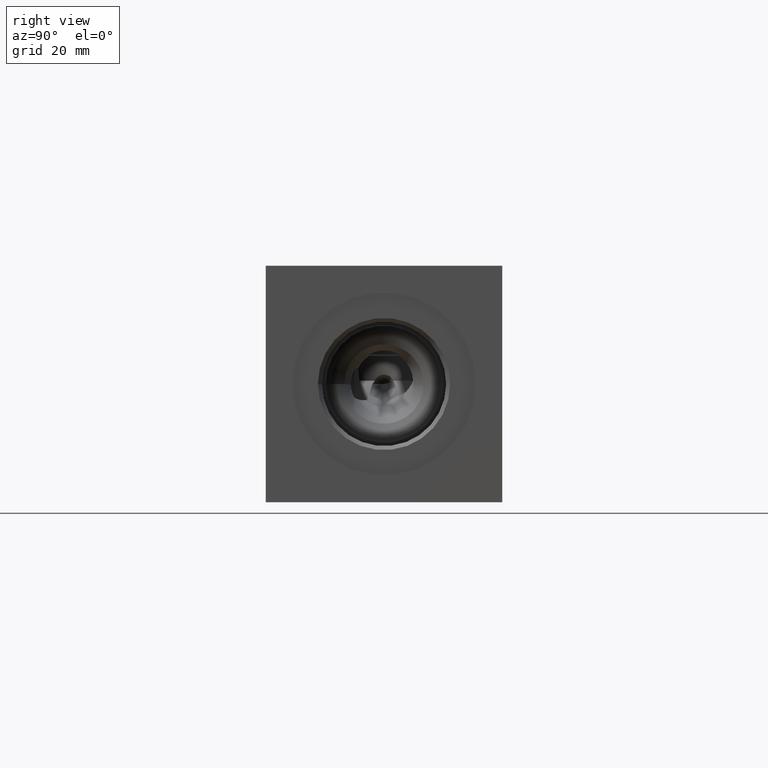
[diagram: clean part render]
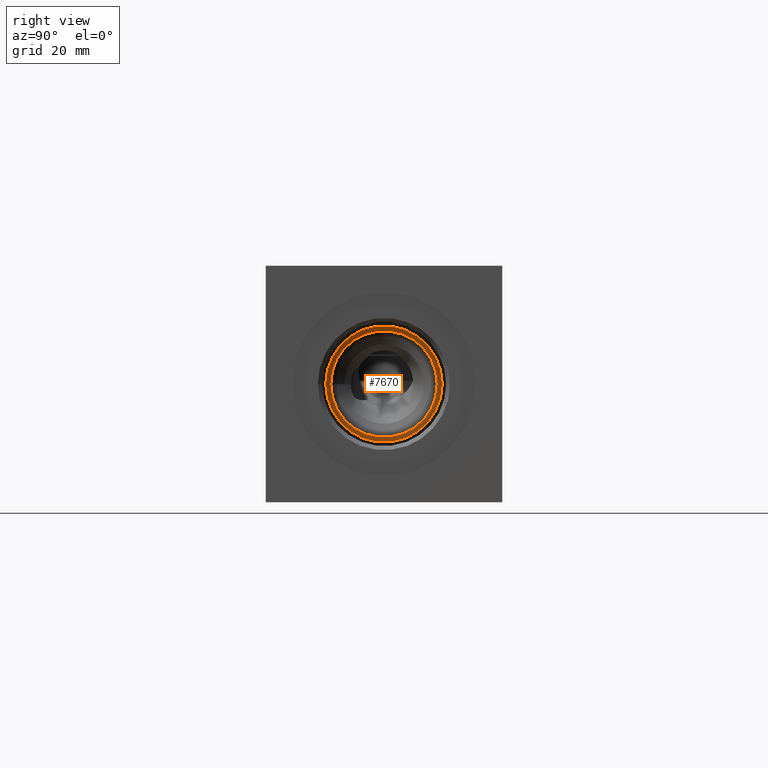
[diagram: same view with one face highlighted and labeled with its STEP entity id]
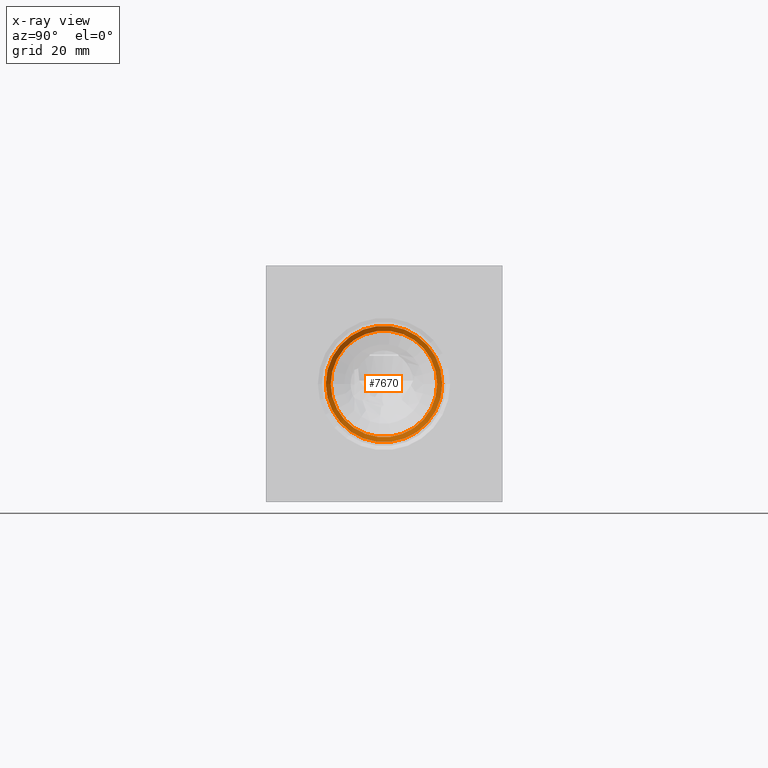
[diagram: x-ray of the same camera — body ghosted, the highlighted face saturated]
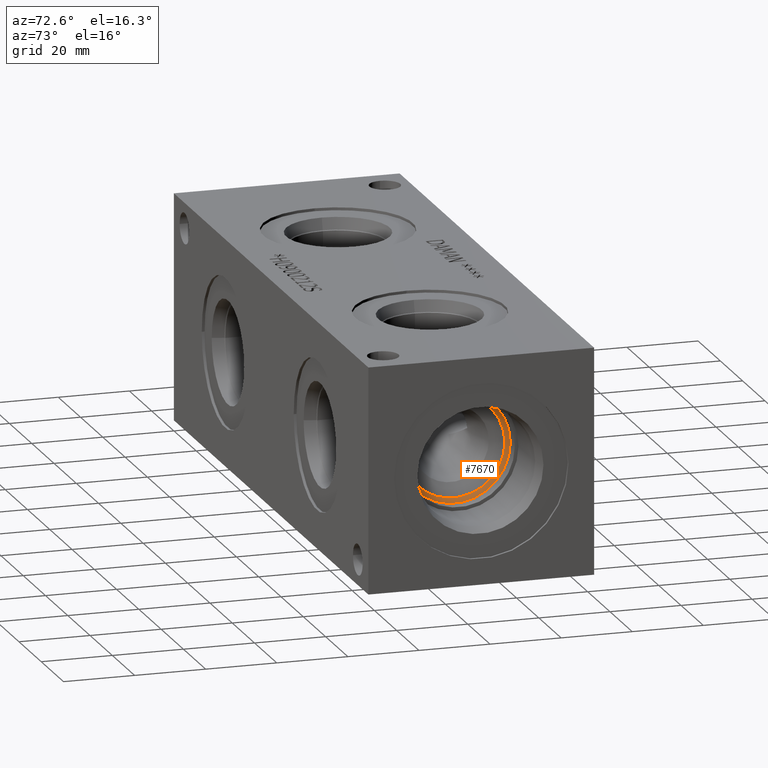
[diagram: same view with one face highlighted and labeled with its STEP entity id]
A machine part, right view. The second image highlights one B-rep face of the part: STEP entity #7670.
The next image is the same camera in x-ray: the body ghosted, the highlighted face saturated — about 0% of this face is hidden behind the body in this view.
A second angle (auxiliary view) of the same face is appended — the face is thin or edge-on in the first view.
In plain terms, the highlighted conical surface has half-angle 66 deg.
Its self-contained STEP definition (entity closure, byte-faithful):
#66=CONICAL_SURFACE('',#7987,7.81685,1.15191730631626);
#104=CIRCLE('',#7986,14.2875);
#105=CIRCLE('',#7988,15.6337);
#106=CIRCLE('',#7989,15.6337);
#909=FACE_OUTER_BOUND('',#1332,.T.);
#1332=EDGE_LOOP('',(#6384,#6385,#6386,#6387,#6388));
#2084=LINE('',#12852,#2799);
#2799=VECTOR('',#9291,7.81685);
#3444=VERTEX_POINT('',#12845);
#3445=VERTEX_POINT('',#12849);
#3446=VERTEX_POINT('',#12850);
#4450=EDGE_CURVE('',#3444,#3444,#104,.T.);
#4452=EDGE_CURVE('',#3445,#3446,#105,.T.);
#4453=EDGE_CURVE('',#3446,#3444,#2084,.T.);
#4454=EDGE_CURVE('',#3446,#3445,#106,.T.);
#6384=ORIENTED_EDGE('',*,*,#4452,.T.);
#6385=ORIENTED_EDGE('',*,*,#4453,.T.);
#6386=ORIENTED_EDGE('',*,*,#4450,.T.);
#6387=ORIENTED_EDGE('',*,*,#4453,.F.);
#6388=ORIENTED_EDGE('',*,*,#4454,.T.);
#7670=ADVANCED_FACE('',(#909),#66,.F.);
#7986=AXIS2_PLACEMENT_3D('',#12846,#9284,#9285);
#7987=AXIS2_PLACEMENT_3D('',#12848,#9287,#9288);
#7988=AXIS2_PLACEMENT_3D('',#12851,#9289,#9290);
#7989=AXIS2_PLACEMENT_3D('',#12853,#9292,#9293);
#9284=DIRECTION('center_axis',(-1.,0.,0.));
#9285=DIRECTION('ref_axis',(0.,1.,0.));
#9287=DIRECTION('center_axis',(1.,0.,0.));
#9288=DIRECTION('ref_axis',(0.,1.,0.));
#9289=DIRECTION('center_axis',(1.,0.,0.));
#9290=DIRECTION('ref_axis',(0.,1.,0.));
#9291=DIRECTION('',(-0.4067366430758,0.913545457642601,1.11877052057762E-16));
#9292=DIRECTION('center_axis',(1.,0.,0.));
#9293=DIRECTION('ref_axis',(0.,1.,0.));
#12845=CARTESIAN_POINT('',(150.226803143838,17.4625,31.75));
#12846=CARTESIAN_POINT('Origin',(150.226803143838,31.75,31.75));
#12848=CARTESIAN_POINT('Origin',(147.345884151246,31.75,31.75));
#12849=CARTESIAN_POINT('',(150.82617,47.3837,31.75));
#12850=CARTESIAN_POINT('',(150.82617,16.1163,31.75));
#12851=CARTESIAN_POINT('Origin',(150.82617,31.75,31.75));
#12852=CARTESIAN_POINT('',(147.345884151246,23.93315,31.75));
#12853=CARTESIAN_POINT('Origin',(150.82617,31.75,31.75));